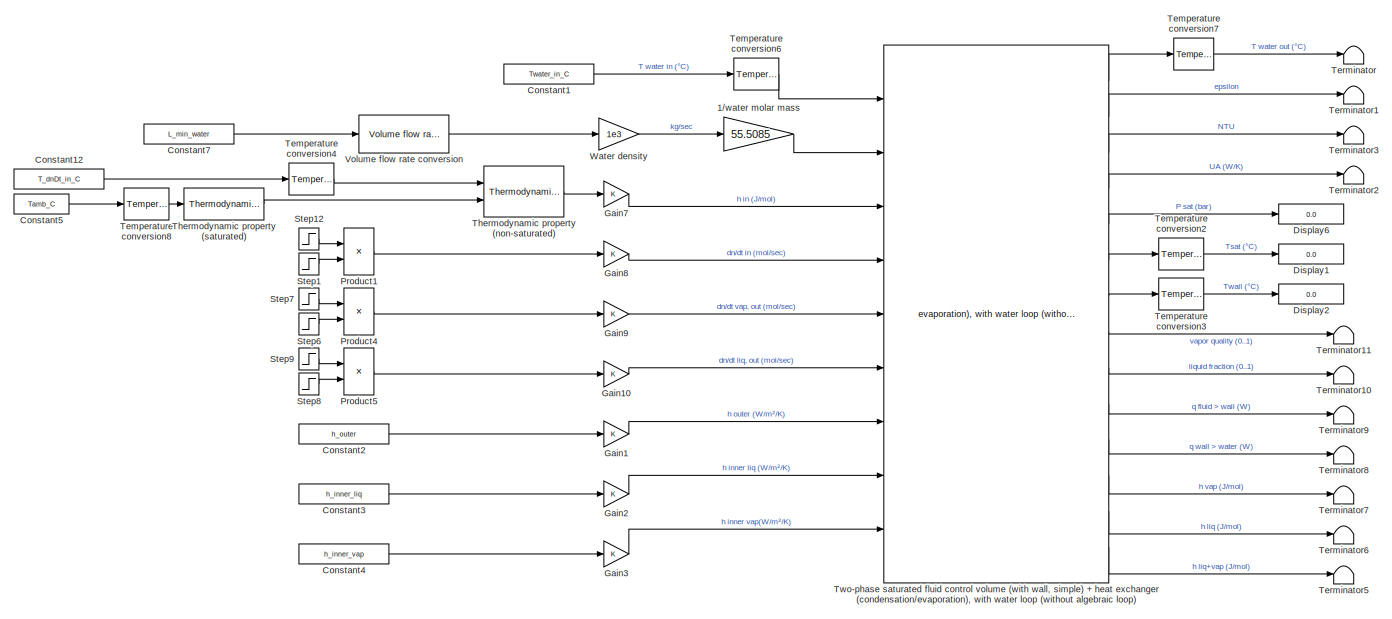
[diagram: root canvas - part 1/2, full width, top band]
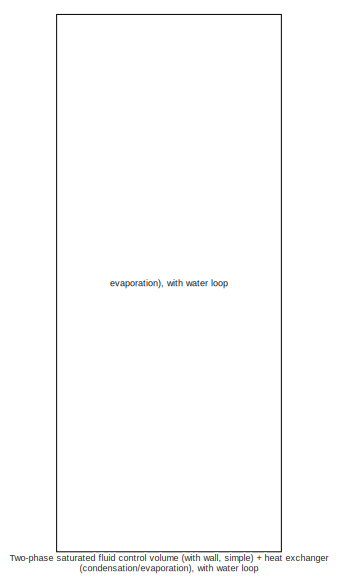
[diagram: root canvas - part 2/2, bottom right region]
MODEL slx_9cfd572f72cb
KIND model
CONFIG AbsTol = auto
CONFIG EnableMultiTasking = off
CONFIG FixedStep = auto
CONFIG MaxStep = 0.1
CONFIG MinStep = auto
CONFIG RelTol = 5e-6
CONFIG SampleTimeConstraint = Unconstrained
CONFIG Solver = ode23tb
CONFIG SolverName = ode23tb
CONFIG StartTime = 0.0
CONFIG StopTime = tEndSimul
BLOCK [Gain] 1//water molar mass
  Gain = 55.5085
  OutDataTypeStr = Inherit: Inherit via internal rule
  ParamDataTypeStr = Inherit: Inherit via internal rule
  SaturateOnIntegerOverflow = off
BLOCK [Constant] Constant1
  Value = Twater_in_C
BLOCK [Constant] Constant12
  Value = T_dnDt_in_C
BLOCK [Constant] Constant2
  Value = h_outer
BLOCK [Constant] Constant3
  Value = h_inner_liq
BLOCK [Constant] Constant4
  Value = h_inner_vap
BLOCK [Constant] Constant5
  Value = Tamb_C
BLOCK [Constant] Constant7
  Value = L_min_water
BLOCK [Display] Display1
  Decimation = 1
  Ports = [1]
BLOCK [Display] Display2
  Decimation = 1
  Ports = [1]
BLOCK [Display] Display6
  Decimation = 1
  Ports = [1]
BLOCK [Gain] Gain1
  OutDataTypeStr = Inherit: Inherit via internal rule
  ParamDataTypeStr = Inherit: Inherit via internal rule
  SaturateOnIntegerOverflow = off
BLOCK [Gain] Gain10
  OutDataTypeStr = Inherit: Inherit via internal rule
  ParamDataTypeStr = Inherit: Inherit via internal rule
  SaturateOnIntegerOverflow = off
BLOCK [Gain] Gain2
  OutDataTypeStr = Inherit: Inherit via internal rule
  ParamDataTypeStr = Inherit: Inherit via internal rule
  SaturateOnIntegerOverflow = off
BLOCK [Gain] Gain3
  OutDataTypeStr = Inherit: Inherit via internal rule
  ParamDataTypeStr = Inherit: Inherit via internal rule
  SaturateOnIntegerOverflow = off
BLOCK [Gain] Gain7
  OutDataTypeStr = Inherit: Inherit via internal rule
  ParamDataTypeStr = Inherit: Inherit via internal rule
  SaturateOnIntegerOverflow = off
BLOCK [Gain] Gain8
  OutDataTypeStr = Inherit: Inherit via internal rule
  ParamDataTypeStr = Inherit: Inherit via internal rule
  SaturateOnIntegerOverflow = off
BLOCK [Gain] Gain9
  OutDataTypeStr = Inherit: Inherit via internal rule
  ParamDataTypeStr = Inherit: Inherit via internal rule
  SaturateOnIntegerOverflow = off
BLOCK [Product] Product1
  InputSameDT = off
  OutDataTypeStr = Inherit: Inherit via internal rule
  Ports = [2, 1]
  RndMeth = Floor
  SaturateOnIntegerOverflow = off
BLOCK [Product] Product4
  InputSameDT = off
  OutDataTypeStr = Inherit: Inherit via internal rule
  Ports = [2, 1]
  RndMeth = Floor
  SaturateOnIntegerOverflow = off
BLOCK [Product] Product5
  InputSameDT = off
  OutDataTypeStr = Inherit: Inherit via internal rule
  Ports = [2, 1]
  RndMeth = Floor
  SaturateOnIntegerOverflow = off
BLOCK [Step] Step1
  After = 0
  Before = 1
  SampleTime = 0
  Time = tEnd_dnDt_in
BLOCK [Step] Step12
  After = dnDt_in
  SampleTime = 0
  Time = tStart_dnDt_in
BLOCK [Step] Step6
  After = 0
  Before = 1
  SampleTime = 0
  Time = tEnd_dnDt_out_vap
BLOCK [Step] Step7
  After = dnDt_out_vap
  SampleTime = 0
  Time = tStart_dnDt_out_vap
BLOCK [Step] Step8
  After = 0
  Before = 1
  SampleTime = 0
  Time = tEnd_dnDt_out_liq
BLOCK [Step] Step9
  After = dnDt_out_liq
  SampleTime = 0
  Time = tStart_dnDt_out_liq
BLOCK [Reference] Temperature conversion2  REF=thermochemical/Conversions/Temperature  (lib defined in slx_f9e0643dc704)
conversion
  Ports = [1, 1]
  SourceBlock = thermochemical/Conversions/Temperature\nconversion
  SourceProductName = @ Thermochemical
  SourceType = convert_temperature
BLOCK [Reference] Temperature conversion3  REF=thermochemical/Conversions/Temperature  (lib defined in slx_f9e0643dc704)
conversion
  Ports = [1, 1]
  SourceBlock = thermochemical/Conversions/Temperature\nconversion
  SourceProductName = @ Thermochemical
  SourceType = convert_temperature
BLOCK [Reference] Temperature conversion4  REF=thermochemical/Conversions/Temperature  (lib defined in slx_f9e0643dc704)
conversion
  Ports = [1, 1]
  SourceBlock = thermochemical/Conversions/Temperature\nconversion
  SourceProductName = @ Thermochemical
  SourceType = convert_temperature
BLOCK [Reference] Temperature conversion6  REF=thermochemical/Conversions/Temperature  (lib defined in slx_f9e0643dc704)
conversion
  Ports = [1, 1]
  SourceBlock = thermochemical/Conversions/Temperature\nconversion
  SourceProductName = @ Thermochemical
  SourceType = convert_temperature
BLOCK [Reference] Temperature conversion7  REF=thermochemical/Conversions/Temperature  (lib defined in slx_f9e0643dc704)
conversion
  Ports = [1, 1]
  SourceBlock = thermochemical/Conversions/Temperature\nconversion
  SourceProductName = @ Thermochemical
  SourceType = convert_temperature
BLOCK [Reference] Temperature conversion8  REF=thermochemical/Conversions/Temperature  (lib defined in slx_f9e0643dc704)
conversion
  Ports = [1, 1]
  SourceBlock = thermochemical/Conversions/Temperature\nconversion
  SourceProductName = @ Thermochemical
  SourceType = convert_temperature
BLOCK [Terminator] Terminator
BLOCK [Terminator] Terminator1
BLOCK [Terminator] Terminator10
BLOCK [Terminator] Terminator11
BLOCK [Terminator] Terminator2
BLOCK [Terminator] Terminator3
BLOCK [Terminator] Terminator5
BLOCK [Terminator] Terminator6
BLOCK [Terminator] Terminator7
BLOCK [Terminator] Terminator8
BLOCK [Terminator] Terminator9
BLOCK [Reference] Thermodynamic property (non-saturated)  REF=thermochemical/Thermodynamic fluid properties/Thermodynamic   (lib defined in slx_f9e0643dc704)
property (non-saturated)
  Ports = [2, 1]
  SourceBlock = thermochemical/Thermodynamic fluid properties/Thermodynamic \nproperty (non-saturated)
  SourceProductName = @ Thermochemical
  SourceType = thermodynamic_properties_nonsaturated
BLOCK [Reference] Thermodynamic property (saturated)  REF=thermochemical/Thermodynamic fluid properties/Thermodynamic   (lib defined in slx_f9e0643dc704)
property (saturated)
  Ports = [1, 1]
  SourceBlock = thermochemical/Thermodynamic fluid properties/Thermodynamic \nproperty (saturated)
  SourceProductName = @ Thermochemical
  SourceType = thermodynamic_properties_saturated
BLOCK [Reference] Two-phase saturated fluid control volume (with wall, simple) + heat exchanger (condensation//evaporation), with water loop  REF=thermochemical/Control volumes/Two-phase saturated fluid control volume (with wall, simple) +  (lib defined in slx_f9e0643dc704)
heat exchanger (condensation//evaporation), with water loop
  Commented = on
  Ports = [9, 14]
  SourceBlock = thermochemical/Control volumes/Two-phase saturated fluid control volume (with wall, simple) +\nheat exchanger (condensation//evaporation), with water loop
  SourceProductName = @ Thermochemical
  SourceType = SubSystem
BLOCK [Reference] Two-phase saturated fluid control volume (with wall, simple) + heat exchanger (condensation//evaporation), with water loop (without algebraic loop)  REF=thermochemical/Control volumes/Two-phase saturated fluid control volume (with wall, simple) +  (lib defined in slx_f9e0643dc704)
heat exchanger (condensation//evaporation), with water loop
(without algebraic loop)
  Ports = [9, 14]
  SourceBlock = thermochemical/Control volumes/Two-phase saturated fluid control volume (with wall, simple) +\nheat exchanger (condensation//evaporation), with water loop\n(without algebraic loop)
  SourceProductName = @ Thermochemical
  SourceType = SubSystem
BLOCK [Reference] Volume flow rate conversion  REF=thermochemical/Conversions/Volume flow rate  (lib defined in slx_f9e0643dc704)
conversion
  Ports = [1, 1]
  SourceBlock = thermochemical/Conversions/Volume flow rate\nconversion
  SourceProductName = @ Thermochemical
  SourceType = convert_volume_flow
BLOCK [Gain] Water density
  Gain = 1e3
  OutDataTypeStr = Inherit: Inherit via internal rule
  ParamDataTypeStr = Inherit: Inherit via internal rule
  SaturateOnIntegerOverflow = off
LINE 1//water molar mass:1 -> Two-phase saturated fluid control volume (with wall, simple) + heat exchanger (condensation//evaporation), with water loop (without algebraic loop):2
LINE Constant12:1 -> Temperature conversion4:1
LINE Constant1:1 -> Temperature conversion6:1
LINE Constant2:1 -> Gain1:1
LINE Constant3:1 -> Gain2:1
LINE Constant4:1 -> Gain3:1
LINE Constant5:1 -> Temperature conversion8:1
LINE Constant7:1 -> Volume flow rate conversion:1
LINE Gain10:1 -> Two-phase saturated fluid control volume (with wall, simple) + heat exchanger (condensation//evaporation), with water loop (without algebraic loop):6
LINE Gain1:1 -> Two-phase saturated fluid control volume (with wall, simple) + heat exchanger (condensation//evaporation), with water loop (without algebraic loop):7
LINE Gain2:1 -> Two-phase saturated fluid control volume (with wall, simple) + heat exchanger (condensation//evaporation), with water loop (without algebraic loop):8
LINE Gain3:1 -> Two-phase saturated fluid control volume (with wall, simple) + heat exchanger (condensation//evaporation), with water loop (without algebraic loop):9
LINE Gain7:1 -> Two-phase saturated fluid control volume (with wall, simple) + heat exchanger (condensation//evaporation), with water loop (without algebraic loop):3
LINE Gain8:1 -> Two-phase saturated fluid control volume (with wall, simple) + heat exchanger (condensation//evaporation), with water loop (without algebraic loop):4
LINE Gain9:1 -> Two-phase saturated fluid control volume (with wall, simple) + heat exchanger (condensation//evaporation), with water loop (without algebraic loop):5
LINE Product1:1 -> Gain8:1
LINE Product4:1 -> Gain9:1
LINE Product5:1 -> Gain10:1
LINE Step12:1 -> Product1:1
LINE Step1:1 -> Product1:2
LINE Step6:1 -> Product4:2
LINE Step7:1 -> Product4:1
LINE Step8:1 -> Product5:2
LINE Step9:1 -> Product5:1
LINE Temperature conversion2:1 -> Display1:1
LINE Temperature conversion3:1 -> Display2:1
LINE Temperature conversion4:1 -> Thermodynamic property (non-saturated):1
LINE Temperature conversion6:1 -> Two-phase saturated fluid control volume (with wall, simple) + heat exchanger (condensation//evaporation), with water loop (without algebraic loop):1
LINE Temperature conversion7:1 -> Terminator:1
LINE Temperature conversion8:1 -> Thermodynamic property (saturated):1
LINE Thermodynamic property (non-saturated):1 -> Gain7:1
LINE Thermodynamic property (saturated):1 -> Thermodynamic property (non-saturated):2
LINE Two-phase saturated fluid control volume (with wall, simple) + heat exchanger (condensation//evaporation), with water loop (without algebraic loop):1 -> Temperature conversion7:1
LINE Two-phase saturated fluid control volume (with wall, simple) + heat exchanger (condensation//evaporation), with water loop (without algebraic loop):10 -> Terminator9:1
LINE Two-phase saturated fluid control volume (with wall, simple) + heat exchanger (condensation//evaporation), with water loop (without algebraic loop):11 -> Terminator8:1
LINE Two-phase saturated fluid control volume (with wall, simple) + heat exchanger (condensation//evaporation), with water loop (without algebraic loop):12 -> Terminator7:1
LINE Two-phase saturated fluid control volume (with wall, simple) + heat exchanger (condensation//evaporation), with water loop (without algebraic loop):13 -> Terminator6:1
LINE Two-phase saturated fluid control volume (with wall, simple) + heat exchanger (condensation//evaporation), with water loop (without algebraic loop):14 -> Terminator5:1
LINE Two-phase saturated fluid control volume (with wall, simple) + heat exchanger (condensation//evaporation), with water loop (without algebraic loop):2 -> Terminator1:1
LINE Two-phase saturated fluid control volume (with wall, simple) + heat exchanger (condensation//evaporation), with water loop (without algebraic loop):3 -> Terminator3:1
LINE Two-phase saturated fluid control volume (with wall, simple) + heat exchanger (condensation//evaporation), with water loop (without algebraic loop):4 -> Terminator2:1
LINE Two-phase saturated fluid control volume (with wall, simple) + heat exchanger (condensation//evaporation), with water loop (without algebraic loop):5 -> Display6:1
LINE Two-phase saturated fluid control volume (with wall, simple) + heat exchanger (condensation//evaporation), with water loop (without algebraic loop):6 -> Temperature conversion2:1
LINE Two-phase saturated fluid control volume (with wall, simple) + heat exchanger (condensation//evaporation), with water loop (without algebraic loop):7 -> Temperature conversion3:1
LINE Two-phase saturated fluid control volume (with wall, simple) + heat exchanger (condensation//evaporation), with water loop (without algebraic loop):8 -> Terminator11:1
LINE Two-phase saturated fluid control volume (with wall, simple) + heat exchanger (condensation//evaporation), with water loop (without algebraic loop):9 -> Terminator10:1
LINE Volume flow rate conversion:1 -> Water density:1
LINE Water density:1 -> 1//water molar mass:1
